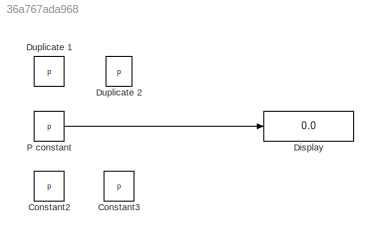
MODEL slx_36a767ada968
KIND model
CONFIG AbsTol = auto
CONFIG EnableMultiTasking = off
CONFIG FixedStep = auto
CONFIG InitFcn = p = 10.78356;
CONFIG MaxStep = auto
CONFIG MinStep = auto
CONFIG RelTol = 1e-3
CONFIG SampleTimeConstraint = Unconstrained
CONFIG Solver = VariableStepAuto
CONFIG SolverName = VariableStepAuto
CONFIG StartTime = 0.0
CONFIG StopTime = 10.0
BLOCK [Constant] Constant2
  Description = This block is a constant block
  Value = p
BLOCK [Constant] Constant3
  Description = This block is a constant block
  Value = p
BLOCK [Display] Display
  Decimation = 1
  Format = long
  Ports = [1]
BLOCK [Constant] Duplicate 1 
  Description = This block is a constant block
  Value = p
BLOCK [Constant] Duplicate 2 
  Description = This block is a constant block
  Value = p
BLOCK [Constant] P constant
  Description = This block is a constant block
  Value = p
LINE P constant:1 -> Display:1
